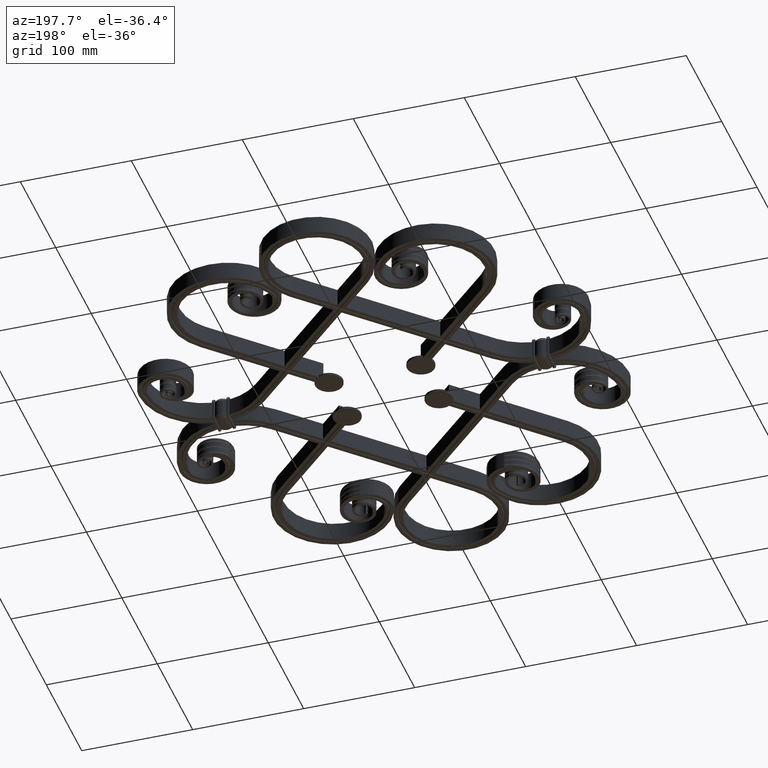
[diagram: clean part render]
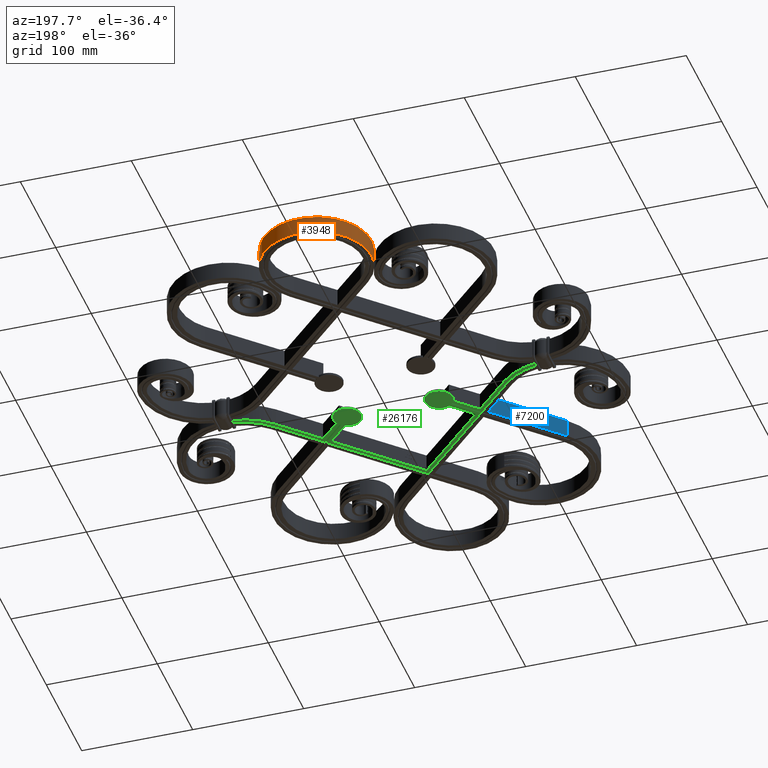
[diagram: same view with three faces highlighted in distinct colors, each labeled with its STEP entity id]
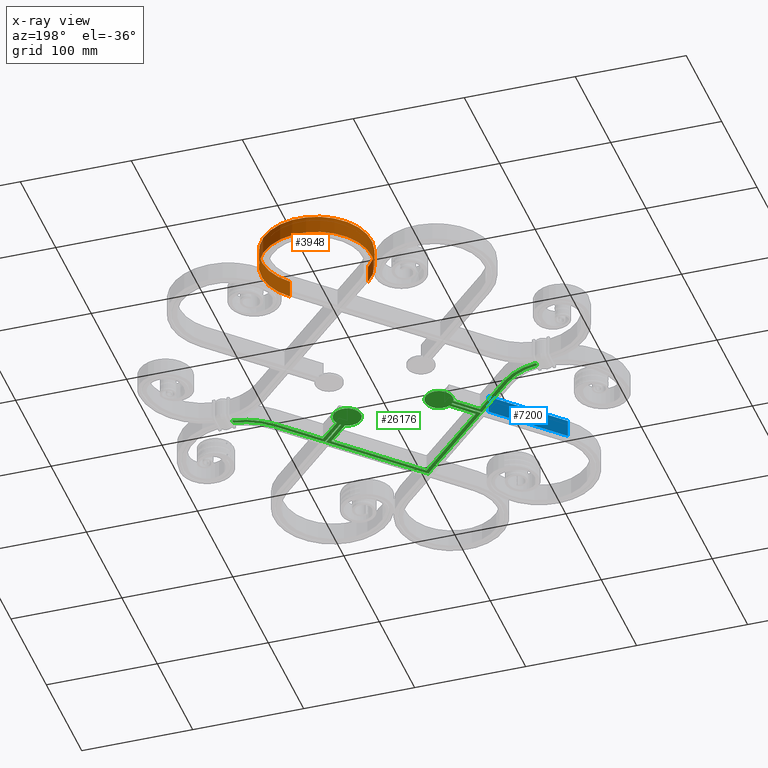
[diagram: x-ray of the same camera — body ghosted, the three highlighted faces saturated]
A machine part, auxiliary view with three faces highlighted in distinct colors.
The next image is the same camera in x-ray (body ghosted, the three faces saturated) — at least one of them is partly hidden behind the body in this view.
Their STEP definitions:

[orange] entity #3948 — the highlighted cylindrical surface (partial cylindrical patch) has radius 49.7056 mm, axis along (-0, -0, -1).
#321 = CYLINDRICAL_SURFACE ( 'NONE', #26966, 49.70562748477141923 ) ;
#596 = CIRCLE ( 'NONE', #17380, 49.70562748477141923 ) ;
#686 = CARTESIAN_POINT ( 'NONE',  ( 35.14718625761419446, 155.1471862576142087, 8.000000000000000000 ) ) ;
#2071 = ORIENTED_EDGE ( 'NONE', *, *, #42418, .F. ) ;
#3908 = DIRECTION ( 'NONE',  ( -1.000000000000000000, 0.000000000000000000, 0.000000000000000000 ) ) ;
#3948 = ADVANCED_FACE ( 'NONE', ( #8177 ), #321, .T. ) ;
#5097 = VERTEX_POINT ( 'NONE', #14861 ) ;
#5718 = ORIENTED_EDGE ( 'NONE', *, *, #47679, .T. ) ;
#6007 = EDGE_LOOP ( 'NONE', ( #2071, #22485, #5718, #18770 ) ) ;
#6529 = VERTEX_POINT ( 'NONE', #686 ) ;
#8177 = FACE_OUTER_BOUND ( 'NONE', #6007, .T. ) ;
#9110 = DIRECTION ( 'NONE',  ( -0.000000000000000000, -0.000000000000000000, -1.000000000000000000 ) ) ;
#10888 = CARTESIAN_POINT ( 'NONE',  ( -35.14718625761423709, 155.1471862576142087, 8.000000000000000000 ) ) ;
#13465 = CARTESIAN_POINT ( 'NONE',  ( 0.000000000000000000, 190.2943725152285595, 8.000000000000000000 ) ) ;
#14861 = CARTESIAN_POINT ( 'NONE',  ( -35.14718625761423709, 155.1471862576142087, -8.000000000000000000 ) ) ;
#17380 = AXIS2_PLACEMENT_3D ( 'NONE', #23726, #55739, #42169 ) ;
#18770 = ORIENTED_EDGE ( 'NONE', *, *, #34623, .F. ) ;
#22485 = ORIENTED_EDGE ( 'NONE', *, *, #57857, .T. ) ;
#23604 = LINE ( 'NONE', #45322, #27940 ) ;
#23726 = CARTESIAN_POINT ( 'NONE',  ( 0.000000000000000000, 190.2943725152285595, 8.000000000000000000 ) ) ;
#25241 = CARTESIAN_POINT ( 'NONE',  ( 35.14718625761419446, 155.1471862576142087, -8.000000000000000000 ) ) ;
#26920 = DIRECTION ( 'NONE',  ( -0.000000000000000000, -0.000000000000000000, 1.000000000000000000 ) ) ;
#26966 = AXIS2_PLACEMENT_3D ( 'NONE', #13465, #27101, #3908 ) ;
#27101 = DIRECTION ( 'NONE',  ( -0.000000000000000000, -0.000000000000000000, -1.000000000000000000 ) ) ;
#27309 = CARTESIAN_POINT ( 'NONE',  ( 0.000000000000000000, 190.2943725152285595, -8.000000000000000000 ) ) ;
#27940 = VECTOR ( 'NONE', #41309, 1000.000000000000000 ) ;
#34623 = EDGE_CURVE ( 'NONE', #52717, #5097, #56054, .T. ) ;
#39798 = AXIS2_PLACEMENT_3D ( 'NONE', #27309, #26920, #45142 ) ;
#40371 = VECTOR ( 'NONE', #9110, 1000.000000000000000 ) ;
#41309 = DIRECTION ( 'NONE',  ( 0.000000000000000000, 0.000000000000000000, -1.000000000000000000 ) ) ;
#42169 = DIRECTION ( 'NONE',  ( -1.000000000000000000, 0.000000000000000000, 0.000000000000000000 ) ) ;
#42418 = EDGE_CURVE ( 'NONE', #6529, #52717, #596, .T. ) ;
#43970 = CIRCLE ( 'NONE', #39798, 49.70562748477141923 ) ;
#44107 = VERTEX_POINT ( 'NONE', #25241 ) ;
#45142 = DIRECTION ( 'NONE',  ( -1.000000000000000000, 0.000000000000000000, 0.000000000000000000 ) ) ;
#45322 = CARTESIAN_POINT ( 'NONE',  ( 35.14718625761419446, 155.1471862576142087, 8.000000000000000000 ) ) ;
#47679 = EDGE_CURVE ( 'NONE', #44107, #5097, #43970, .T. ) ;
#50544 = CARTESIAN_POINT ( 'NONE',  ( -35.14718625761423709, 155.1471862576142087, 8.000000000000000000 ) ) ;
#52717 = VERTEX_POINT ( 'NONE', #10888 ) ;
#55739 = DIRECTION ( 'NONE',  ( 0.000000000000000000, 0.000000000000000000, 1.000000000000000000 ) ) ;
#56054 = LINE ( 'NONE', #50544, #40371 ) ;
#57857 = EDGE_CURVE ( 'NONE', #6529, #44107, #23604, .T. ) ;

[blue] entity #7200 — the highlighted planar face has unit normal (0.7071, -0.7071, 0).
#5236 = VECTOR ( 'NONE', #16314, 1000.000000000000000 ) ;
#5838 = CARTESIAN_POINT ( 'NONE',  ( -76.36753236814736567, -54.94617613083780583, 8.000000000000000000 ) ) ;
#5935 = VECTOR ( 'NONE', #14676, 1000.000000000000000 ) ;
#6020 = ORIENTED_EDGE ( 'NONE', *, *, #54497, .F. ) ;
#6600 = ORIENTED_EDGE ( 'NONE', *, *, #19089, .T. ) ;
#7200 = ADVANCED_FACE ( 'NONE', ( #15826 ), #52863, .F. ) ;
#7718 = ORIENTED_EDGE ( 'NONE', *, *, #30509, .T. ) ;
#9920 = CARTESIAN_POINT ( 'NONE',  ( -130.7612741618762300, -109.3399179245664641, 8.000000000000000000 ) ) ;
#13094 = LINE ( 'NONE', #18464, #16644 ) ;
#13868 = EDGE_LOOP ( 'NONE', ( #6020, #7718, #6600, #45572 ) ) ;
#13944 = CARTESIAN_POINT ( 'NONE',  ( -76.36753236814736567, -54.94617613083780583, -8.000000000000000000 ) ) ;
#14676 = DIRECTION ( 'NONE',  ( -0.000000000000000000, 0.000000000000000000, -1.000000000000000000 ) ) ;
#15187 = LINE ( 'NONE', #5838, #5236 ) ;
#15796 = VERTEX_POINT ( 'NONE', #13944 ) ;
#15826 = FACE_OUTER_BOUND ( 'NONE', #13868, .T. ) ;
#16314 = DIRECTION ( 'NONE',  ( -0.000000000000000000, 0.000000000000000000, -1.000000000000000000 ) ) ;
#16644 = VECTOR ( 'NONE', #32737, 1000.000000000000000 ) ;
#18464 = CARTESIAN_POINT ( 'NONE',  ( -76.36753236814736567, -54.94617613083780583, -8.000000000000000000 ) ) ;
#18568 = CARTESIAN_POINT ( 'NONE',  ( -76.36753236814736567, -54.94617613083780583, 8.000000000000000000 ) ) ;
#18901 = CARTESIAN_POINT ( 'NONE',  ( -130.7612741618762300, -109.3399179245664641, 8.000000000000000000 ) ) ;
#19089 = EDGE_CURVE ( 'NONE', #24763, #15796, #15187, .T. ) ;
#20884 = AXIS2_PLACEMENT_3D ( 'NONE', #45058, #38879, #48024 ) ;
#24763 = VERTEX_POINT ( 'NONE', #50721 ) ;
#27810 = DIRECTION ( 'NONE',  ( 0.7071067811865486830, 0.7071067811865464625, 0.000000000000000000 ) ) ;
#30509 = EDGE_CURVE ( 'NONE', #32395, #24763, #37007, .T. ) ;
#32395 = VERTEX_POINT ( 'NONE', #18901 ) ;
#32737 = DIRECTION ( 'NONE',  ( 0.7071067811865486830, 0.7071067811865464625, 0.000000000000000000 ) ) ;
#37007 = LINE ( 'NONE', #18568, #43438 ) ;
#37638 = CARTESIAN_POINT ( 'NONE',  ( -130.7612741618762300, -109.3399179245664641, -8.000000000000000000 ) ) ;
#38879 = DIRECTION ( 'NONE',  ( 0.7071067811865463515, -0.7071067811865486830, 0.000000000000000000 ) ) ;
#43438 = VECTOR ( 'NONE', #27810, 1000.000000000000000 ) ;
#45058 = CARTESIAN_POINT ( 'NONE',  ( -76.36753236814736567, -54.94617613083780583, 8.000000000000000000 ) ) ;
#45147 = VERTEX_POINT ( 'NONE', #37638 ) ;
#45339 = LINE ( 'NONE', #9920, #5935 ) ;
#45572 = ORIENTED_EDGE ( 'NONE', *, *, #54842, .F. ) ;
#48024 = DIRECTION ( 'NONE',  ( -0.7071067811865486830, -0.7071067811865463515, 0.000000000000000000 ) ) ;
#50721 = CARTESIAN_POINT ( 'NONE',  ( -76.36753236814736567, -54.94617613083780583, 8.000000000000000000 ) ) ;
#52863 = PLANE ( 'NONE',  #20884 ) ;
#54497 = EDGE_CURVE ( 'NONE', #32395, #45147, #45339, .T. ) ;
#54842 = EDGE_CURVE ( 'NONE', #45147, #15796, #13094, .T. ) ;

[green] entity #26176 — the highlighted planar face has unit normal (0, 0, 1).
#761 = LINE ( 'NONE', #5543, #22952 ) ;
#777 = LINE ( 'NONE', #51694, #25102 ) ;
#824 = LINE ( 'NONE', #53519, #6554 ) ;
#845 = EDGE_CURVE ( 'NONE', #58819, #45364, #31228, .T. ) ;
#990 = VERTEX_POINT ( 'NONE', #5224 ) ;
#1539 = CARTESIAN_POINT ( 'NONE',  ( -70.71067811865492558, -49.28932188134539416, -8.000000000000000000 ) ) ;
#1593 = ORIENTED_EDGE ( 'NONE', *, *, #4136, .T. ) ;
#1893 = VERTEX_POINT ( 'NONE', #57229 ) ;
#2236 = VERTEX_POINT ( 'NONE', #27606 ) ;
#2416 = ORIENTED_EDGE ( 'NONE', *, *, #5741, .F. ) ;
#2503 = PLANE ( 'NONE',  #53197 ) ;
#2702 = DIRECTION ( 'NONE',  ( 0.000000000000000000, 0.000000000000000000, 1.000000000000000000 ) ) ;
#2795 = LINE ( 'NONE', #47601, #32896 ) ;
#3025 = EDGE_CURVE ( 'NONE', #990, #45364, #31874, .T. ) ;
#3120 = DIRECTION ( 'NONE',  ( -0.7071067811865472397, 0.7071067811865479058, 0.000000000000000000 ) ) ;
#3460 = DIRECTION ( 'NONE',  ( -0.7071067811865490160, -0.7071067811865460184, 0.000000000000000000 ) ) ;
#3523 = DIRECTION ( 'NONE',  ( -1.000000000000000000, 2.378927967702698850E-16, 0.000000000000000000 ) ) ;
#3635 = EDGE_CURVE ( 'NONE', #58819, #28035, #29742, .T. ) ;
#3845 = ORIENTED_EDGE ( 'NONE', *, *, #845, .T. ) ;
#4090 = CARTESIAN_POINT ( 'NONE',  ( -4.120750835143157825E-14, -120.0000000000001137, -8.000000000000000000 ) ) ;
#4136 = EDGE_CURVE ( 'NONE', #35505, #41139, #19585, .T. ) ;
#4320 = EDGE_CURVE ( 'NONE', #57851, #52430, #11067, .T. ) ;
#4425 = DIRECTION ( 'NONE',  ( -0.7071067811865476838, -0.7071067811865474617, 0.000000000000000000 ) ) ;
#4674 = EDGE_CURVE ( 'NONE', #51656, #46105, #51859, .T. ) ;
#5057 = CIRCLE ( 'NONE', #20088, 58.33630944788993844 ) ;
#5073 = VECTOR ( 'NONE', #28664, 1000.000000000000000 ) ;
#5224 = CARTESIAN_POINT ( 'NONE',  ( 70.71067811865491137, -49.28932188134541548, -8.000000000000000000 ) ) ;
#5543 = CARTESIAN_POINT ( 'NONE',  ( -122.3413885931406355, -2.498969075424406494, -8.000000000000000000 ) ) ;
#5741 = EDGE_CURVE ( 'NONE', #20905, #18751, #7335, .T. ) ;
#5860 = DIRECTION ( 'NONE',  ( -0.7071067811865472397, 0.7071067811865479058, 0.000000000000000000 ) ) ;
#6330 = AXIS2_PLACEMENT_3D ( 'NONE', #45341, #26927, #22694 ) ;
#6430 = AXIS2_PLACEMENT_3D ( 'NONE', #9338, #23317, #27366 ) ;
#6554 = VECTOR ( 'NONE', #58665, 1000.000000000000000 ) ;
#6711 = DIRECTION ( 'NONE',  ( 0.7071067811865489050, -0.7071067811865462405, 0.000000000000000000 ) ) ;
#7307 = CARTESIAN_POINT ( 'NONE',  ( -70.71067811865491137, -54.12967954991003694, -8.000000000000000000 ) ) ;
#7335 = LINE ( 'NONE', #35069, #19467 ) ;
#7342 = ORIENTED_EDGE ( 'NONE', *, *, #48683, .F. ) ;
#7658 = EDGE_CURVE ( 'NONE', #13619, #1893, #824, .T. ) ;
#8339 = DIRECTION ( 'NONE',  ( 0.7071067811865470176, -0.7071067811865479058, 0.000000000000000000 ) ) ;
#8386 = LINE ( 'NONE', #39909, #15528 ) ;
#8938 = CARTESIAN_POINT ( 'NONE',  ( 52.56824093638149975, -31.14688469907198964, -8.000000000000000000 ) ) ;
#9338 = CARTESIAN_POINT ( 'NONE',  ( -144.1636905521100971, -58.33630944788988160, -8.000000000000000000 ) ) ;
#9520 = EDGE_CURVE ( 'NONE', #18751, #46641, #53702, .T. ) ;
#9609 = VECTOR ( 'NONE', #28364, 1000.000000000000000 ) ;
#9716 = CARTESIAN_POINT ( 'NONE',  ( 46.91138668688913782, -36.80373894856436578, -8.000000000000000000 ) ) ;
#10235 = CIRCLE ( 'NONE', #31186, 12.49999999999999645 ) ;
#10698 = CARTESIAN_POINT ( 'NONE',  ( 122.3413885931406355, -2.498969075424437580, -8.000000000000000000 ) ) ;
#10782 = ORIENTED_EDGE ( 'NONE', *, *, #4320, .T. ) ;
#11062 = LINE ( 'NONE', #34752, #20322 ) ;
#11067 = LINE ( 'NONE', #29570, #38999 ) ;
#11589 = ORIENTED_EDGE ( 'NONE', *, *, #40969, .F. ) ;
#11774 = DIRECTION ( 'NONE',  ( 0.7071067811865472397, -0.7071067811865479058, 0.000000000000000000 ) ) ;
#12022 = ORIENTED_EDGE ( 'NONE', *, *, #57417, .T. ) ;
#12114 = VERTEX_POINT ( 'NONE', #19247 ) ;
#13619 = VERTEX_POINT ( 'NONE', #1539 ) ;
#14334 = EDGE_CURVE ( 'NONE', #47235, #46105, #8386, .T. ) ;
#14380 = EDGE_CURVE ( 'NONE', #2236, #57851, #39205, .T. ) ;
#15194 = LINE ( 'NONE', #39917, #39642 ) ;
#15389 = ORIENTED_EDGE ( 'NONE', *, *, #18946, .T. ) ;
#15528 = VECTOR ( 'NONE', #32451, 1000.000000000000000 ) ;
#16276 = ORIENTED_EDGE ( 'NONE', *, *, #55053, .F. ) ;
#16721 = VERTEX_POINT ( 'NONE', #55575 ) ;
#17293 = LINE ( 'NONE', #10698, #52409 ) ;
#17489 = ORIENTED_EDGE ( 'NONE', *, *, #38262, .T. ) ;
#18069 = ORIENTED_EDGE ( 'NONE', *, *, #57337, .T. ) ;
#18263 = DIRECTION ( 'NONE',  ( 0.000000000000000000, 0.000000000000000000, 1.000000000000000000 ) ) ;
#18385 = ORIENTED_EDGE ( 'NONE', *, *, #3025, .F. ) ;
#18751 = VERTEX_POINT ( 'NONE', #33766 ) ;
#18812 = ORIENTED_EDGE ( 'NONE', *, *, #9520, .F. ) ;
#18946 = EDGE_CURVE ( 'NONE', #51656, #16721, #10235, .T. ) ;
#18952 = AXIS2_PLACEMENT_3D ( 'NONE', #41612, #50806, #23168 ) ;
#19025 = AXIS2_PLACEMENT_3D ( 'NONE', #35549, #44367, #3523 ) ;
#19247 = CARTESIAN_POINT ( 'NONE',  ( -136.9099999999999682, -3.903837550157447822, -8.000000000000003553 ) ) ;
#19295 = DIRECTION ( 'NONE',  ( -0.7071067811865473507, -0.7071067811865477948, 0.000000000000000000 ) ) ;
#19467 = VECTOR ( 'NONE', #39690, 1000.000000000000000 ) ;
#19585 = LINE ( 'NONE', #54003, #40441 ) ;
#19816 = CARTESIAN_POINT ( 'NONE',  ( -125.7315219101926544, -110.7835165033032183, -8.000000000000000000 ) ) ;
#19874 = VERTEX_POINT ( 'NONE', #46445 ) ;
#19989 = LINE ( 'NONE', #26964, #24993 ) ;
#20088 = AXIS2_PLACEMENT_3D ( 'NONE', #48091, #43919, #34331 ) ;
#20322 = VECTOR ( 'NONE', #3120, 999.9999999999998863 ) ;
#20905 = VERTEX_POINT ( 'NONE', #58086 ) ;
#21998 = VECTOR ( 'NONE', #4425, 1000.000000000000000 ) ;
#22274 = EDGE_CURVE ( 'NONE', #35505, #49471, #55280, .T. ) ;
#22694 = DIRECTION ( 'NONE',  ( -1.000000000000000000, 0.000000000000000000, 0.000000000000000000 ) ) ;
#22952 = VECTOR ( 'NONE', #47152, 1000.000000000000000 ) ;
#23014 = CIRCLE ( 'NONE', #47372, 54.91365971707953975 ) ;
#23168 = DIRECTION ( 'NONE',  ( -1.000000000000000000, 0.000000000000000000, 0.000000000000000000 ) ) ;
#23317 = DIRECTION ( 'NONE',  ( 0.000000000000000000, 0.000000000000000000, -1.000000000000000000 ) ) ;
#23677 = ORIENTED_EDGE ( 'NONE', *, *, #14380, .T. ) ;
#23748 = EDGE_LOOP ( 'NONE', ( #17489, #29875, #46140, #42524, #23677, #10782, #16276, #47480, #3845, #18385, #11589, #18812, #2416, #43833, #34880, #49761, #15389, #43368, #58039, #54017, #18069, #43204, #1593, #42183, #7342, #12022 ) ) ;
#23973 = CARTESIAN_POINT ( 'NONE',  ( -136.9099999999999682, -0.4527282406580554475, -8.000000000000000000 ) ) ;
#24719 = EDGE_CURVE ( 'NONE', #20905, #47235, #23014, .T. ) ;
#24993 = VECTOR ( 'NONE', #8339, 1000.000000000000114 ) ;
#25102 = VECTOR ( 'NONE', #47231, 1000.000000000000000 ) ;
#25504 = CARTESIAN_POINT ( 'NONE',  ( 105.3338693863924220, -19.50648828217259378, -8.000000000000000000 ) ) ;
#25707 = EDGE_CURVE ( 'NONE', #19874, #34494, #761, .T. ) ;
#26176 = ADVANCED_FACE ( 'NONE', ( #48004 ), #2503, .F. ) ;
#26927 = DIRECTION ( 'NONE',  ( -0.000000000000000000, -0.000000000000000000, 1.000000000000000000 ) ) ;
#26964 = CARTESIAN_POINT ( 'NONE',  ( -70.71067811865492558, -49.28932188134539416, -8.000000000000000000 ) ) ;
#27248 = DIRECTION ( 'NONE',  ( 1.000000000000000000, -2.775557561562892337E-16, 0.000000000000000000 ) ) ;
#27366 = DIRECTION ( 'NONE',  ( -1.000000000000000000, 0.000000000000000000, 0.000000000000000000 ) ) ;
#27606 = CARTESIAN_POINT ( 'NONE',  ( -46.91138668688914493, -36.80373894856435157, -8.000000000000000000 ) ) ;
#28035 = VERTEX_POINT ( 'NONE', #37129 ) ;
#28364 = DIRECTION ( 'NONE',  ( 0.7071067811865474617, -0.7071067811865476838, 0.000000000000000000 ) ) ;
#28664 = DIRECTION ( 'NONE',  ( 0.7071067811865474617, 0.7071067811865475727, 0.000000000000000000 ) ) ;
#29570 = CARTESIAN_POINT ( 'NONE',  ( 1.040834085586084257E-14, -120.0000000000001137, -8.000000000000000000 ) ) ;
#29742 = LINE ( 'NONE', #55747, #9609 ) ;
#29875 = ORIENTED_EDGE ( 'NONE', *, *, #58708, .T. ) ;
#29908 = DIRECTION ( 'NONE',  ( -0.7071067811865485719, -0.7071067811865465735, 0.000000000000000000 ) ) ;
#30523 = VERTEX_POINT ( 'NONE', #23973 ) ;
#31186 = AXIS2_PLACEMENT_3D ( 'NONE', #46054, #50073, #41104 ) ;
#31228 = CIRCLE ( 'NONE', #36091, 12.49999999999999645 ) ;
#31874 = LINE ( 'NONE', #56084, #50444 ) ;
#32451 = DIRECTION ( 'NONE',  ( -0.7071067811865485719, -0.7071067811865465735, 0.000000000000000000 ) ) ;
#32896 = VECTOR ( 'NONE', #38655, 1000.000000000000000 ) ;
#33014 = LINE ( 'NONE', #19816, #5073 ) ;
#33766 = CARTESIAN_POINT ( 'NONE',  ( 136.9099999999999682, -0.4527282406580905860, -8.000000000000000000 ) ) ;
#34331 = DIRECTION ( 'NONE',  ( 1.000000000000000000, 0.000000000000000000, 0.000000000000000000 ) ) ;
#34494 = VERTEX_POINT ( 'NONE', #43799 ) ;
#34550 = DIRECTION ( 'NONE',  ( -1.000000000000000000, 0.000000000000000000, 0.000000000000000000 ) ) ;
#34741 = CARTESIAN_POINT ( 'NONE',  ( -178.1787289656059841, -58.33630944788989581, -8.000000000000000000 ) ) ;
#34752 = CARTESIAN_POINT ( 'NONE',  ( 125.7315219101926260, -110.7835165033032467, -8.000000000000000000 ) ) ;
#34880 = ORIENTED_EDGE ( 'NONE', *, *, #14334, .T. ) ;
#35069 = CARTESIAN_POINT ( 'NONE',  ( 136.9099999999999682, -7.000000000000009770, -8.000000000000003553 ) ) ;
#35505 = VERTEX_POINT ( 'NONE', #40026 ) ;
#35549 = CARTESIAN_POINT ( 'NONE',  ( 144.1636905521100687, -58.33630944788991712, -8.000000000000000000 ) ) ;
#36091 = AXIS2_PLACEMENT_3D ( 'NONE', #59048, #41077, #27248 ) ;
#36120 = CARTESIAN_POINT ( 'NONE',  ( -65.05382386916255655, -54.94617613083777030, -8.000000000000000000 ) ) ;
#36652 = CARTESIAN_POINT ( 'NONE',  ( 50.60339663060754134, -34.02239806186267401, -8.000000000000000000 ) ) ;
#37129 = CARTESIAN_POINT ( 'NONE',  ( 65.05382386916254234, -54.94617613083778451, -8.000000000000000000 ) ) ;
#37188 = CARTESIAN_POINT ( 'NONE',  ( -49.78690004967978666, -34.83889464279032921, -8.000000000000000000 ) ) ;
#38262 = EDGE_CURVE ( 'NONE', #30523, #57624, #5057, .T. ) ;
#38655 = DIRECTION ( 'NONE',  ( 0.7071067811865483499, -0.7071067811865467956, 0.000000000000000000 ) ) ;
#38999 = VECTOR ( 'NONE', #6711, 999.9999999999998863 ) ;
#39205 = LINE ( 'NONE', #50031, #21998 ) ;
#39219 = CARTESIAN_POINT ( 'NONE',  ( 126.5480184911203452, -109.9670199223755418, -8.000000000000000000 ) ) ;
#39477 = EDGE_CURVE ( 'NONE', #2236, #1893, #55121, .T. ) ;
#39642 = VECTOR ( 'NONE', #3460, 1000.000000000000227 ) ;
#39690 = DIRECTION ( 'NONE',  ( 2.566597291297558776E-16, 1.000000000000000000, 0.000000000000000000 ) ) ;
#39909 = CARTESIAN_POINT ( 'NONE',  ( 122.3413885931406355, -2.498969075424437580, -8.000000000000000000 ) ) ;
#39917 = CARTESIAN_POINT ( 'NONE',  ( -4.120750835143157825E-14, -120.0000000000001137, -8.000000000000000000 ) ) ;
#40026 = CARTESIAN_POINT ( 'NONE',  ( -50.60339663060754845, -34.02239806186265980, -8.000000000000000000 ) ) ;
#40441 = VECTOR ( 'NONE', #49590, 1000.000000000000000 ) ;
#40969 = EDGE_CURVE ( 'NONE', #46641, #990, #57174, .T. ) ;
#41016 = VERTEX_POINT ( 'NONE', #48115 ) ;
#41077 = DIRECTION ( 'NONE',  ( -0.000000000000000000, -0.000000000000000000, -1.000000000000000000 ) ) ;
#41104 = DIRECTION ( 'NONE',  ( 1.000000000000000000, -2.775557561562892337E-16, 0.000000000000000000 ) ) ;
#41139 = VERTEX_POINT ( 'NONE', #7307 ) ;
#41612 = CARTESIAN_POINT ( 'NONE',  ( -41.36574669941321503, -25.60124471159605974, -8.000000000000000000 ) ) ;
#41963 = EDGE_CURVE ( 'NONE', #58608, #41139, #2795, .T. ) ;
#42183 = ORIENTED_EDGE ( 'NONE', *, *, #41963, .F. ) ;
#42524 = ORIENTED_EDGE ( 'NONE', *, *, #39477, .F. ) ;
#43204 = ORIENTED_EDGE ( 'NONE', *, *, #22274, .F. ) ;
#43368 = ORIENTED_EDGE ( 'NONE', *, *, #47151, .F. ) ;
#43597 = VECTOR ( 'NONE', #19295, 1000.000000000000000 ) ;
#43799 = CARTESIAN_POINT ( 'NONE',  ( -4.591928019149013945E-14, -124.8403576685647920, -8.000000000000000000 ) ) ;
#43833 = ORIENTED_EDGE ( 'NONE', *, *, #24719, .T. ) ;
#43919 = DIRECTION ( 'NONE',  ( -0.000000000000000000, -0.000000000000000000, -1.000000000000000000 ) ) ;
#44367 = DIRECTION ( 'NONE',  ( 0.000000000000000000, -0.000000000000000000, 1.000000000000000000 ) ) ;
#45320 = CIRCLE ( 'NONE', #6430, 54.91365971707951132 ) ;
#45341 = CARTESIAN_POINT ( 'NONE',  ( -41.36574669941321503, -25.60124471159605974, -8.000000000000000000 ) ) ;
#45364 = VERTEX_POINT ( 'NONE', #8938 ) ;
#45705 = CARTESIAN_POINT ( 'NONE',  ( 144.1636905521100687, -58.33630944788991712, -8.000000000000000000 ) ) ;
#46054 = CARTESIAN_POINT ( 'NONE',  ( 41.36574669941320792, -25.60124471159607040, -8.000000000000000000 ) ) ;
#46105 = VERTEX_POINT ( 'NONE', #48072 ) ;
#46140 = ORIENTED_EDGE ( 'NONE', *, *, #7658, .T. ) ;
#46445 = CARTESIAN_POINT ( 'NONE',  ( -69.89418153772717801, -54.94617613083773477, -7.999999999999996447 ) ) ;
#46641 = VERTEX_POINT ( 'NONE', #54006 ) ;
#47151 = EDGE_CURVE ( 'NONE', #41016, #16721, #11062, .T. ) ;
#47152 = DIRECTION ( 'NONE',  ( 0.7071067811865483499, -0.7071067811865467956, 0.000000000000000000 ) ) ;
#47231 = DIRECTION ( 'NONE',  ( 0.000000000000000000, 1.000000000000000000, 0.000000000000000000 ) ) ;
#47235 = VERTEX_POINT ( 'NONE', #25504 ) ;
#47327 = CARTESIAN_POINT ( 'NONE',  ( -102.9136905521103103, -17.08630944788999528, -8.000000000000000000 ) ) ;
#47372 = AXIS2_PLACEMENT_3D ( 'NONE', #45705, #18263, #55485 ) ;
#47480 = ORIENTED_EDGE ( 'NONE', *, *, #3635, .F. ) ;
#47601 = CARTESIAN_POINT ( 'NONE',  ( -122.3413885931406355, -2.498969075424406494, -8.000000000000000000 ) ) ;
#48004 = FACE_OUTER_BOUND ( 'NONE', #23748, .T. ) ;
#48072 = CARTESIAN_POINT ( 'NONE',  ( 70.71067811865489716, -54.12967954991005826, -8.000000000000000000 ) ) ;
#48091 = CARTESIAN_POINT ( 'NONE',  ( -144.1636905521100971, -58.33630944788988160, -8.000000000000000000 ) ) ;
#48115 = CARTESIAN_POINT ( 'NONE',  ( 69.89418153772716380, -54.94617613083775609, -7.999999999999996447 ) ) ;
#48200 = VECTOR ( 'NONE', #11774, 999.9999999999998863 ) ;
#48576 = CARTESIAN_POINT ( 'NONE',  ( -105.3338693863924220, -19.50648828217256536, -8.000000000000000000 ) ) ;
#48683 = EDGE_CURVE ( 'NONE', #12114, #58608, #45320, .T. ) ;
#49471 = VERTEX_POINT ( 'NONE', #37188 ) ;
#49590 = DIRECTION ( 'NONE',  ( -0.7071067811865474617, -0.7071067811865475727, 0.000000000000000000 ) ) ;
#49761 = ORIENTED_EDGE ( 'NONE', *, *, #4674, .F. ) ;
#50031 = CARTESIAN_POINT ( 'NONE',  ( -65.05382386916255655, -54.94617613083777030, -8.000000000000000000 ) ) ;
#50073 = DIRECTION ( 'NONE',  ( -0.000000000000000000, -0.000000000000000000, -1.000000000000000000 ) ) ;
#50444 = VECTOR ( 'NONE', #5860, 999.9999999999998863 ) ;
#50806 = DIRECTION ( 'NONE',  ( -0.000000000000000000, -0.000000000000000000, 1.000000000000000000 ) ) ;
#51656 = VERTEX_POINT ( 'NONE', #36652 ) ;
#51694 = CARTESIAN_POINT ( 'NONE',  ( -136.9099999999999682, -6.999999999999974243, -8.000000000000003553 ) ) ;
#51859 = LINE ( 'NONE', #39219, #48200 ) ;
#52409 = VECTOR ( 'NONE', #29908, 1000.000000000000000 ) ;
#52430 = VERTEX_POINT ( 'NONE', #4090 ) ;
#53197 = AXIS2_PLACEMENT_3D ( 'NONE', #34741, #2702, #34550 ) ;
#53519 = CARTESIAN_POINT ( 'NONE',  ( -70.71067811865492558, -49.28932188134539416, -8.000000000000000000 ) ) ;
#53702 = CIRCLE ( 'NONE', #19025, 58.33630944788993844 ) ;
#54003 = CARTESIAN_POINT ( 'NONE',  ( -126.5480184911203736, -109.9670199223755134, -8.000000000000000000 ) ) ;
#54006 = CARTESIAN_POINT ( 'NONE',  ( 102.9136905521103103, -17.08630944789002370, -8.000000000000000000 ) ) ;
#54017 = ORIENTED_EDGE ( 'NONE', *, *, #25707, .F. ) ;
#55053 = EDGE_CURVE ( 'NONE', #28035, #52430, #15194, .T. ) ;
#55121 = CIRCLE ( 'NONE', #6330, 12.49999999999999645 ) ;
#55280 = CIRCLE ( 'NONE', #18952, 12.49999999999999645 ) ;
#55485 = DIRECTION ( 'NONE',  ( 1.000000000000000000, -2.527201406592486100E-16, 0.000000000000000000 ) ) ;
#55575 = CARTESIAN_POINT ( 'NONE',  ( 49.78690004967977956, -34.83889464279034343, -8.000000000000000000 ) ) ;
#55725 = CARTESIAN_POINT ( 'NONE',  ( 70.71067811865491137, -49.28932188134541548, -8.000000000000000000 ) ) ;
#55747 = CARTESIAN_POINT ( 'NONE',  ( 65.05382386916254234, -54.94617613083778451, -8.000000000000000000 ) ) ;
#56084 = CARTESIAN_POINT ( 'NONE',  ( 70.71067811865491137, -49.28932188134541548, -8.000000000000000000 ) ) ;
#56416 = EDGE_CURVE ( 'NONE', #41016, #34494, #17293, .T. ) ;
#57174 = LINE ( 'NONE', #55725, #43597 ) ;
#57229 = CARTESIAN_POINT ( 'NONE',  ( -52.56824093638150686, -31.14688469907197543, -8.000000000000000000 ) ) ;
#57337 = EDGE_CURVE ( 'NONE', #19874, #49471, #33014, .T. ) ;
#57417 = EDGE_CURVE ( 'NONE', #12114, #30523, #777, .T. ) ;
#57624 = VERTEX_POINT ( 'NONE', #47327 ) ;
#57851 = VERTEX_POINT ( 'NONE', #36120 ) ;
#58039 = ORIENTED_EDGE ( 'NONE', *, *, #56416, .T. ) ;
#58086 = CARTESIAN_POINT ( 'NONE',  ( 136.9099999999999682, -3.903837550157482905, -8.000000000000003553 ) ) ;
#58608 = VERTEX_POINT ( 'NONE', #48576 ) ;
#58665 = DIRECTION ( 'NONE',  ( 0.7071067811865474617, 0.7071067811865475727, 0.000000000000000000 ) ) ;
#58708 = EDGE_CURVE ( 'NONE', #57624, #13619, #19989, .T. ) ;
#58819 = VERTEX_POINT ( 'NONE', #9716 ) ;
#59048 = CARTESIAN_POINT ( 'NONE',  ( 41.36574669941320792, -25.60124471159607040, -8.000000000000000000 ) ) ;